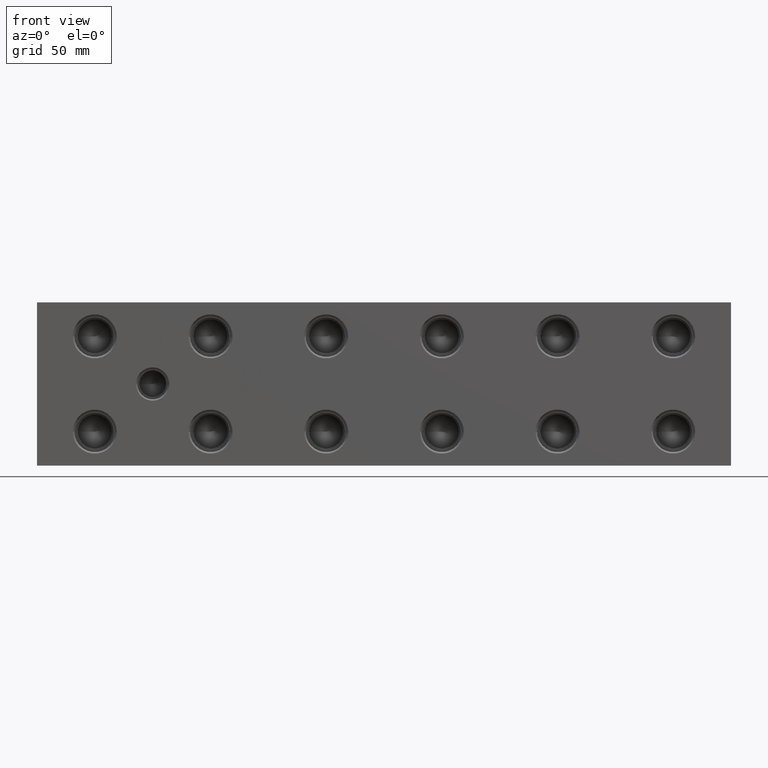
[diagram: clean part render]
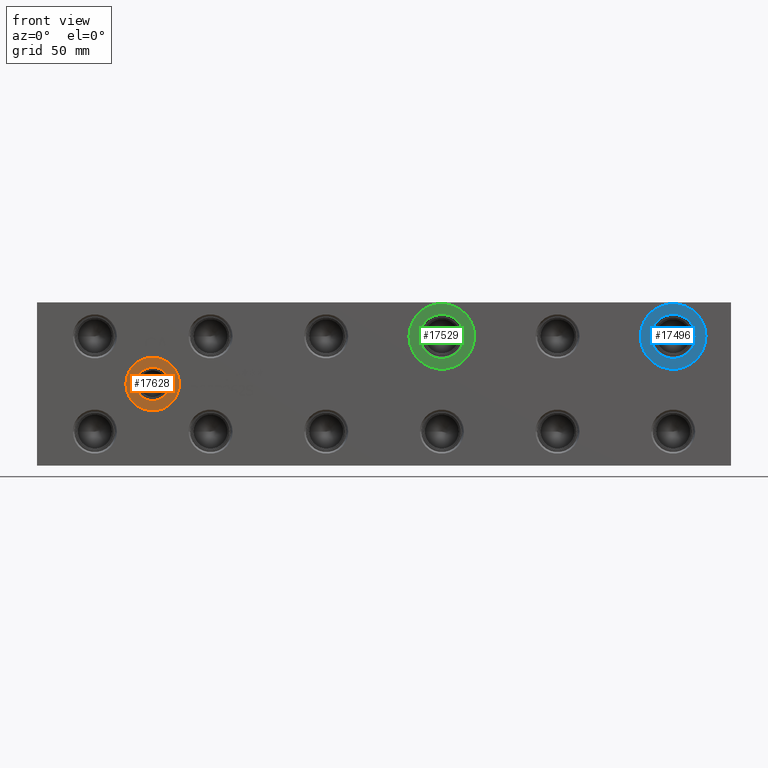
[diagram: same view with three faces highlighted in distinct colors, each labeled with its STEP entity id]
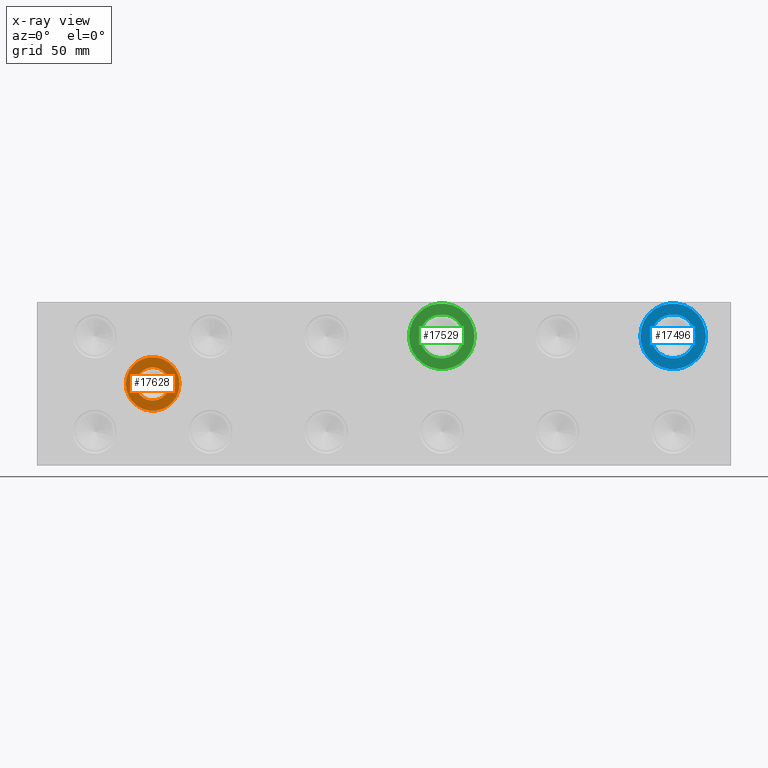
[diagram: x-ray of the same camera — body ghosted, the three highlighted faces saturated]
A machine part, front view with three faces highlighted in distinct colors.
The next image is the same camera in x-ray (body ghosted, the three faces saturated) — at least one of them is partly hidden behind the body in this view.
Their STEP definitions:

[orange] entity #17628 — the highlighted planar face has unit normal (0, 1, 0).
#452=CIRCLE('',#18567,12.5095);
#453=CIRCLE('',#18569,7.7978);
#780=FACE_BOUND('',#3251,.T.);
#1312=PLANE('',#18568);
#2132=FACE_OUTER_BOUND('',#3250,.T.);
#3250=EDGE_LOOP('',(#15162));
#3251=EDGE_LOOP('',(#15163));
#8523=VERTEX_POINT('',#29926);
#8524=VERTEX_POINT('',#29930);
#10798=EDGE_CURVE('',#8523,#8523,#452,.T.);
#10799=EDGE_CURVE('',#8524,#8524,#453,.T.);
#15162=ORIENTED_EDGE('',*,*,#10798,.F.);
#15163=ORIENTED_EDGE('',*,*,#10799,.T.);
#17628=ADVANCED_FACE('',(#2132,#780),#1312,.F.);
#18567=AXIS2_PLACEMENT_3D('',#29928,#21798,#21799);
#18568=AXIS2_PLACEMENT_3D('',#29929,#21800,#21801);
#18569=AXIS2_PLACEMENT_3D('',#29931,#21802,#21803);
#21798=DIRECTION('center_axis',(0.,1.,0.));
#21799=DIRECTION('ref_axis',(1.,0.,0.));
#21800=DIRECTION('center_axis',(0.,1.,0.));
#21801=DIRECTION('ref_axis',(0.,0.,1.));
#21802=DIRECTION('center_axis',(0.,1.,0.));
#21803=DIRECTION('ref_axis',(1.,0.,0.));
#29926=CARTESIAN_POINT('',(41.4655,0.7874,38.1));
#29928=CARTESIAN_POINT('Origin',(53.975,0.7874,38.1));
#29929=CARTESIAN_POINT('Origin',(61.7728,0.7874,38.1));
#29930=CARTESIAN_POINT('',(46.1772,0.787399999999999,38.1));
#29931=CARTESIAN_POINT('Origin',(53.975,0.7874,38.1));

[blue] entity #17496 — the highlighted planar face has unit normal (0, 1, 0).
#332=CIRCLE('',#18315,15.3162);
#333=CIRCLE('',#18317,10.2997);
#756=FACE_BOUND('',#3095,.T.);
#1288=PLANE('',#18316);
#2000=FACE_OUTER_BOUND('',#3094,.T.);
#3094=EDGE_LOOP('',(#14694));
#3095=EDGE_LOOP('',(#14695));
#8391=VERTEX_POINT('',#29434);
#8392=VERTEX_POINT('',#29438);
#10570=EDGE_CURVE('',#8391,#8391,#332,.T.);
#10571=EDGE_CURVE('',#8392,#8392,#333,.T.);
#14694=ORIENTED_EDGE('',*,*,#10570,.F.);
#14695=ORIENTED_EDGE('',*,*,#10571,.T.);
#17496=ADVANCED_FACE('',(#2000,#756),#1288,.F.);
#18315=AXIS2_PLACEMENT_3D('',#29436,#21186,#21187);
#18316=AXIS2_PLACEMENT_3D('',#29437,#21188,#21189);
#18317=AXIS2_PLACEMENT_3D('',#29439,#21190,#21191);
#21186=DIRECTION('center_axis',(0.,1.,0.));
#21187=DIRECTION('ref_axis',(1.,0.,0.));
#21188=DIRECTION('center_axis',(0.,1.,0.));
#21189=DIRECTION('ref_axis',(0.,0.,1.));
#21190=DIRECTION('center_axis',(0.,1.,0.));
#21191=DIRECTION('ref_axis',(1.,0.,0.));
#29434=CARTESIAN_POINT('',(281.5336,0.7874,60.325));
#29436=CARTESIAN_POINT('Origin',(296.8498,0.7874,60.325));
#29437=CARTESIAN_POINT('Origin',(307.1495,0.7874,60.325));
#29438=CARTESIAN_POINT('',(286.5501,0.7874,60.325));
#29439=CARTESIAN_POINT('Origin',(296.8498,0.7874,60.325));

[green] entity #17529 — the highlighted planar face has unit normal (0, 1, 0).
#362=CIRCLE('',#18378,15.3162);
#363=CIRCLE('',#18380,10.2997);
#762=FACE_BOUND('',#3134,.T.);
#1294=PLANE('',#18379);
#2033=FACE_OUTER_BOUND('',#3133,.T.);
#3133=EDGE_LOOP('',(#14811));
#3134=EDGE_LOOP('',(#14812));
#8424=VERTEX_POINT('',#29557);
#8425=VERTEX_POINT('',#29561);
#10627=EDGE_CURVE('',#8424,#8424,#362,.T.);
#10628=EDGE_CURVE('',#8425,#8425,#363,.T.);
#14811=ORIENTED_EDGE('',*,*,#10627,.F.);
#14812=ORIENTED_EDGE('',*,*,#10628,.T.);
#17529=ADVANCED_FACE('',(#2033,#762),#1294,.F.);
#18378=AXIS2_PLACEMENT_3D('',#29559,#21339,#21340);
#18379=AXIS2_PLACEMENT_3D('',#29560,#21341,#21342);
#18380=AXIS2_PLACEMENT_3D('',#29562,#21343,#21344);
#21339=DIRECTION('center_axis',(0.,1.,0.));
#21340=DIRECTION('ref_axis',(1.,0.,0.));
#21341=DIRECTION('center_axis',(0.,1.,0.));
#21342=DIRECTION('ref_axis',(0.,0.,1.));
#21343=DIRECTION('center_axis',(0.,1.,0.));
#21344=DIRECTION('ref_axis',(1.,0.,0.));
#29557=CARTESIAN_POINT('',(173.5836,0.7874,60.325));
#29559=CARTESIAN_POINT('Origin',(188.8998,0.7874,60.325));
#29560=CARTESIAN_POINT('Origin',(199.1995,0.7874,60.325));
#29561=CARTESIAN_POINT('',(178.6001,0.7874,60.325));
#29562=CARTESIAN_POINT('Origin',(188.8998,0.7874,60.325));